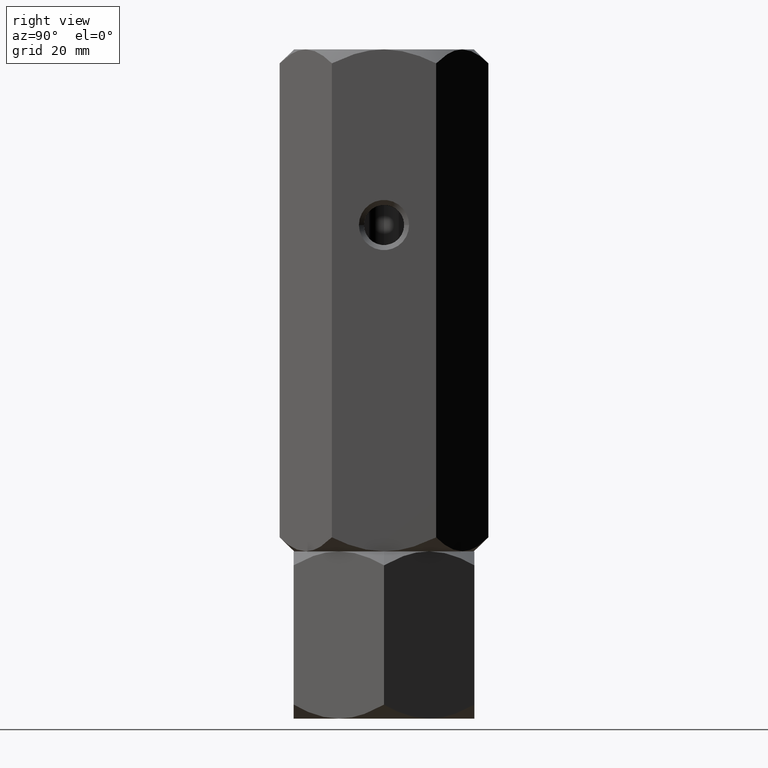
[diagram: clean part render]
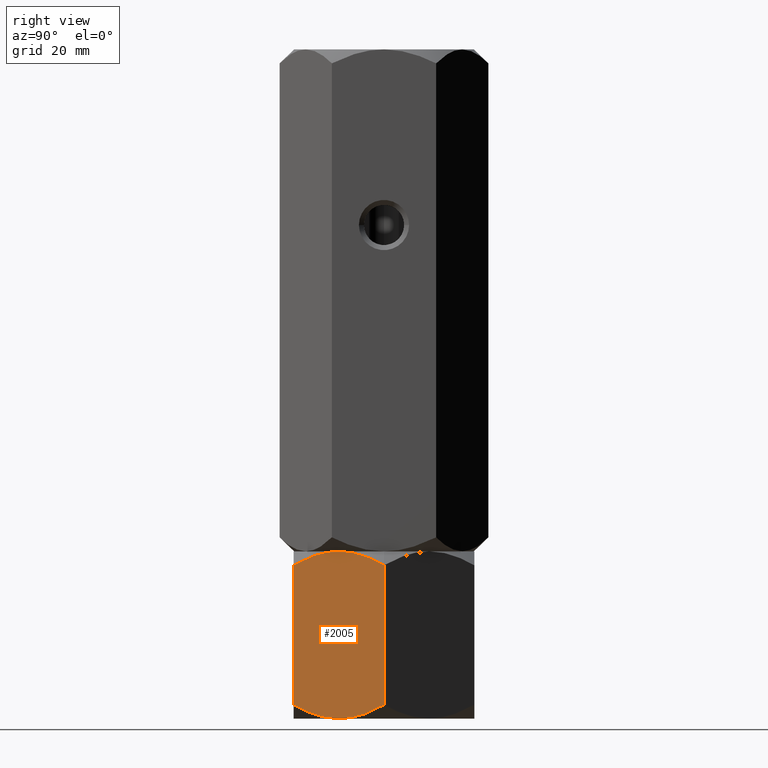
[diagram: same view with one face highlighted and labeled with its STEP entity id]
A machine part, right view. The second image highlights one B-rep face of the part: STEP entity #2005.
In plain terms, the highlighted planar face has unit normal (-0.866, 0.5, 0).
Its self-contained STEP definition (entity closure, byte-faithful):
#3 = CARTESIAN_POINT ( 'NONE',  ( 20.78460969082652809, -4.404509159444062513E-16, 2.784609690826518769 ) ) ;
#28 = CARTESIAN_POINT ( 'NONE',  ( 16.50312530264320543, -7.415748492146457593, 0.08694689011815548429 ) ) ;
#32 = VECTOR ( 'NONE', #1469, 1000.000000000000000 ) ;
#60 = CARTESIAN_POINT ( 'NONE',  ( 14.67378923359658138, -10.58425150785354418, 33.24638644321514391 ) ) ;
#65 = EDGE_CURVE ( 'NONE', #646, #1914, #1619, .T. ) ;
#81 = EDGE_LOOP ( 'NONE', ( #1513, #1861, #1810, #1931, #309, #853 ) ) ;
#163 = CARTESIAN_POINT ( 'NONE',  ( 17.84166640377631907, -5.097327296964724752, 0.5370855558290092979 ) ) ;
#173 = EDGE_CURVE ( 'NONE', #542, #571, #518, .T. ) ;
#178 = CARTESIAN_POINT ( 'NONE',  ( 15.81600583360881807, -8.605874323383773117, 8.300922883092144309E-16 ) ) ;
#179 = CARTESIAN_POINT ( 'NONE',  ( 20.78460969082652809, 0.000000000000000000, 33.33333333333330017 ) ) ;
#180 = CARTESIAN_POINT ( 'NONE',  ( 10.39230484541326227, -18.00000000000000000, 33.33333333333330017 ) ) ;
#286 = CARTESIAN_POINT ( 'NONE',  ( 20.78460969082652809, 2.339913672068599110E-16, 30.54872364250677919 ) ) ;
#299 = CARTESIAN_POINT ( 'NONE',  ( 19.97072132548310108, -1.409696000463987353, 31.36261200785025238 ) ) ;
#309 = ORIENTED_EDGE ( 'NONE', *, *, #600, .F. ) ;
#346 = CARTESIAN_POINT ( 'NONE',  ( 19.96977770663490048, -1.411330396252048702, 1.969777706634900483 ) ) ;
#357 = CARTESIAN_POINT ( 'NONE',  ( 10.39230484541326227, -18.00000000000000000, 30.54872364250678274 ) ) ;
#369 = B_SPLINE_CURVE_WITH_KNOTS ( 'NONE', 3,
 ( #3, #346, #621, #163, #1932, #1453, #28, #991, #178, #1137 ),
 .UNSPECIFIED., .F., .F.,
 ( 4, 2, 2, 2, 4 ),
 ( 2.544307986819122044E-07, 0.005386537354063078605, 0.008079678815695276808, 0.009426249546511375477, 0.01077282027732747414 ),
 .UNSPECIFIED. ) ;
#393 = VERTEX_POINT ( 'NONE', #420 ) ;
#394 = B_SPLINE_CURVE_WITH_KNOTS ( 'NONE', 3,
 ( #400, #1005, #1630, #1638, #849, #1479, #60, #1989, #1338, #536 ),
 .UNSPECIFIED., .F., .F.,
 ( 4, 2, 2, 2, 4 ),
 ( 2.544307986796311447E-07, 0.005386537354063074268, 0.008079678815695273339, 0.009426249546511370273, 0.01077282027732746721 ),
 .UNSPECIFIED. ) ;
#400 = CARTESIAN_POINT ( 'NONE',  ( 10.39230484541326227, -18.00000000000000000, 30.54872364250678274 ) ) ;
#420 = CARTESIAN_POINT ( 'NONE',  ( 15.58845726811989429, -9.000000000000001776, 0.000000000000000000 ) ) ;
#518 = B_SPLINE_CURVE_WITH_KNOTS ( 'NONE', 3,
 ( #1109, #1390, #1871, #1738, #299, #773 ),
 .UNSPECIFIED., .F., .F.,
 ( 4, 2, 4 ),
 ( 0.01077282027732746721, 0.01612137750481873466, 0.02146993473231000038 ),
 .UNSPECIFIED. ) ;
#536 = CARTESIAN_POINT ( 'NONE',  ( 15.58845726811989429, -9.000000000000001776, 33.33333333333330017 ) ) ;
#542 = VERTEX_POINT ( 'NONE', #741 ) ;
#571 = VERTEX_POINT ( 'NONE', #286 ) ;
#590 = CARTESIAN_POINT ( 'NONE',  ( 10.39230484541326227, -18.00000000000000000, 2.784609690826516104 ) ) ;
#600 = EDGE_CURVE ( 'NONE', #571, #1124, #1425, .T. ) ;
#621 = CARTESIAN_POINT ( 'NONE',  ( 19.13650452186756112, -2.854601888853813385, 1.277383077889869600 ) ) ;
#646 = VERTEX_POINT ( 'NONE', #357 ) ;
#669 = CARTESIAN_POINT ( 'NONE',  ( 13.79618737047370125, -12.10430252359947900, 0.2763959071215842944 ) ) ;
#732 = VECTOR ( 'NONE', #1615, 1000.000000000000000 ) ;
#741 = CARTESIAN_POINT ( 'NONE',  ( 15.58845726811989429, -9.000000000000001776, 33.33333333333330017 ) ) ;
#769 = EDGE_CURVE ( 'NONE', #393, #1914, #1937, .T. ) ;
#773 = CARTESIAN_POINT ( 'NONE',  ( 20.78460969082652809, 2.339913672068599110E-16, 30.54872364250677919 ) ) ;
#780 = PLANE ( 'NONE',  #1699 ) ;
#849 = CARTESIAN_POINT ( 'NONE',  ( 13.77442836864821629, -12.14199022028320130, 32.99277023107802620 ) ) ;
#853 = ORIENTED_EDGE ( 'NONE', *, *, #173, .F. ) ;
#869 = CARTESIAN_POINT ( 'NONE',  ( 20.78460969082652809, -4.404509159444062513E-16, 2.784609690826518769 ) ) ;
#940 = FACE_OUTER_BOUND ( 'NONE', #81, .T. ) ;
#991 = CARTESIAN_POINT ( 'NONE',  ( 16.04483044561308702, -8.209538469370128766, 0.01733285647409073954 ) ) ;
#1005 = CARTESIAN_POINT ( 'NONE',  ( 11.20713682960488100, -16.58866960374795241, 31.36355562669839614 ) ) ;
#1109 = CARTESIAN_POINT ( 'NONE',  ( 15.58845726811989429, -9.000000000000001776, 33.33333333333330017 ) ) ;
#1124 = VERTEX_POINT ( 'NONE', #869 ) ;
#1132 = CARTESIAN_POINT ( 'NONE',  ( 14.68463803553234825, -10.56546083169953754, 1.128247885742727657E-15 ) ) ;
#1137 = CARTESIAN_POINT ( 'NONE',  ( 15.58845726811989429, -9.000000000000001776, 0.000000000000000000 ) ) ;
#1264 = DIRECTION ( 'NONE',  ( -0.8660254037844385966, 0.5000000000000001110, 0.000000000000000000 ) ) ;
#1279 = CARTESIAN_POINT ( 'NONE',  ( 15.58845726811989429, -9.000000000000001776, 0.000000000000000000 ) ) ;
#1289 = CARTESIAN_POINT ( 'NONE',  ( 10.39230484541326227, -18.00000000000000000, 33.33333333333330017 ) ) ;
#1338 = CARTESIAN_POINT ( 'NONE',  ( 15.36090870263097230, -9.394125676616233989, 33.33333333333330728 ) ) ;
#1390 = CARTESIAN_POINT ( 'NONE',  ( 16.49227650070744389, -7.434539168300460688, 33.33333333333330017 ) ) ;
#1425 = LINE ( 'NONE', #179, #732 ) ;
#1447 = EDGE_CURVE ( 'NONE', #1124, #393, #369, .T. ) ;
#1453 = CARTESIAN_POINT ( 'NONE',  ( 16.72971695024924799, -7.023280245922048692, 0.1387225990985750668 ) ) ;
#1469 = DIRECTION ( 'NONE',  ( -0.000000000000000000, -0.000000000000000000, -1.000000000000000000 ) ) ;
#1479 = CARTESIAN_POINT ( 'NONE',  ( 14.44719758599053705, -10.97671975407795131, 33.19461073423471476 ) ) ;
#1513 = ORIENTED_EDGE ( 'NONE', *, *, #1772, .F. ) ;
#1587 = CARTESIAN_POINT ( 'NONE',  ( 11.20619321075668395, -16.59030399953601531, 1.970721325483048458 ) ) ;
#1607 = DIRECTION ( 'NONE',  ( -0.5000000000000001110, -0.8660254037844385966, 0.000000000000000000 ) ) ;
#1615 = DIRECTION ( 'NONE',  ( -0.000000000000000000, -0.000000000000000000, -1.000000000000000000 ) ) ;
#1619 = LINE ( 'NONE', #1289, #32 ) ;
#1630 = CARTESIAN_POINT ( 'NONE',  ( 12.04041001437222214, -15.14539811114618928, 32.05595025544342747 ) ) ;
#1638 = CARTESIAN_POINT ( 'NONE',  ( 13.33524813246346952, -12.90267270303527525, 32.79624777750428422 ) ) ;
#1699 = AXIS2_PLACEMENT_3D ( 'NONE', #180, #1264, #1607 ) ;
#1738 = CARTESIAN_POINT ( 'NONE',  ( 19.13297464765288325, -2.860715810337963738, 32.06075863182904584 ) ) ;
#1748 = CARTESIAN_POINT ( 'NONE',  ( 10.39230484541326227, -18.00000000000000000, 2.784609690826516104 ) ) ;
#1757 = CARTESIAN_POINT ( 'NONE',  ( 12.04393988858690356, -15.13928418966203182, 1.272574701504241235 ) ) ;
#1772 = EDGE_CURVE ( 'NONE', #646, #542, #394, .T. ) ;
#1810 = ORIENTED_EDGE ( 'NONE', *, *, #769, .F. ) ;
#1861 = ORIENTED_EDGE ( 'NONE', *, *, #65, .T. ) ;
#1871 = CARTESIAN_POINT ( 'NONE',  ( 17.38072716576608912, -5.895697476400520110, 33.05693742621171083 ) ) ;
#1914 = VERTEX_POINT ( 'NONE', #590 ) ;
#1931 = ORIENTED_EDGE ( 'NONE', *, *, #1447, .F. ) ;
#1932 = CARTESIAN_POINT ( 'NONE',  ( 17.40248616759156874, -5.858009779716798704, 0.3405631022552671472 ) ) ;
#1937 = B_SPLINE_CURVE_WITH_KNOTS ( 'NONE', 3,
 ( #1279, #1132, #669, #1757, #1587, #1748 ),
 .UNSPECIFIED., .F., .F.,
 ( 4, 2, 4 ),
 ( 0.01077282027732747414, 0.01612137750481873813, 0.02146993473231000038 ),
 .UNSPECIFIED. ) ;
#1989 = CARTESIAN_POINT ( 'NONE',  ( 15.13208409062669446, -9.790461530629873010, 33.31600047685921595 ) ) ;
#2005 = ADVANCED_FACE ( 'NONE', ( #940 ), #780, .F. ) ;